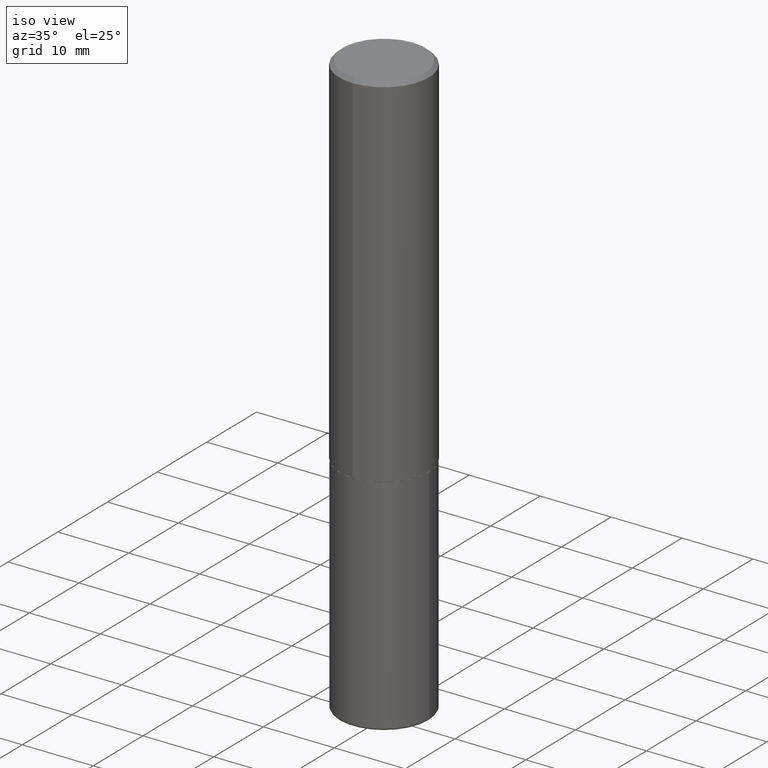
[diagram: clean part render]
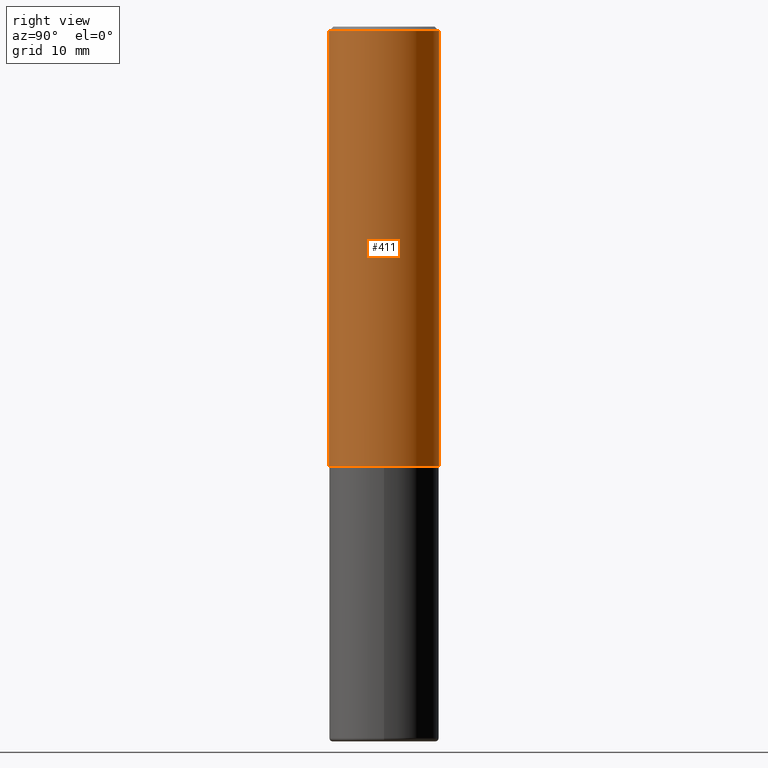
[diagram: tour spotlight — one face highlighted and labeled with its STEP entity id]
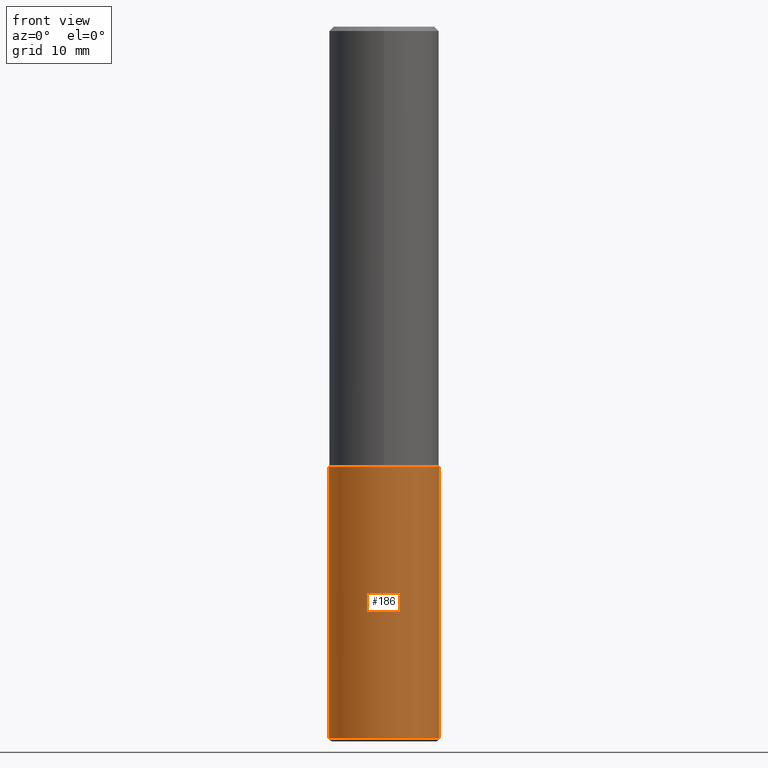
[diagram: tour spotlight — one face highlighted and labeled with its STEP entity id]
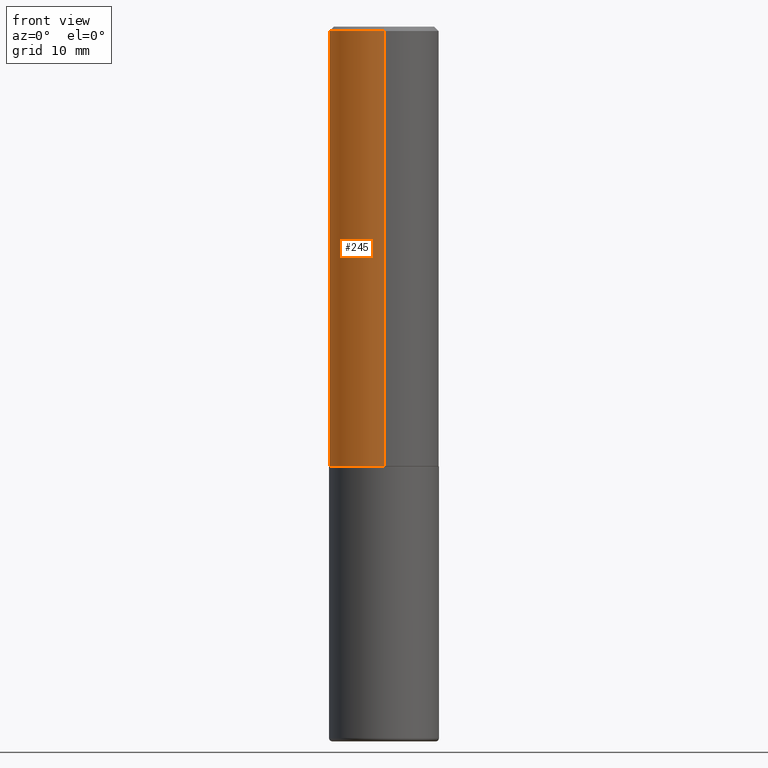
[diagram: tour spotlight — one face highlighted and labeled with its STEP entity id]
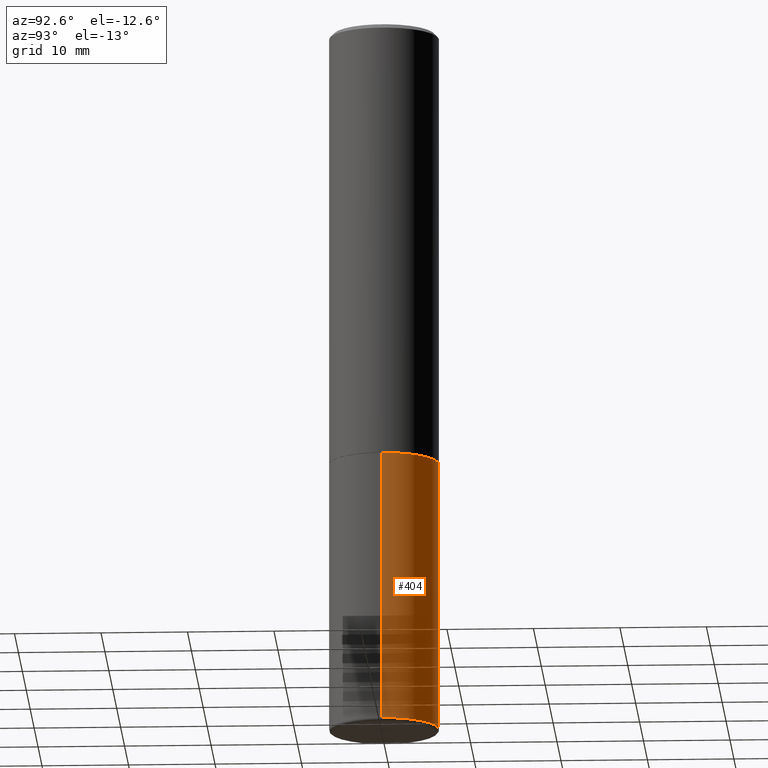
[diagram: tour spotlight — one face highlighted and labeled with its STEP entity id]
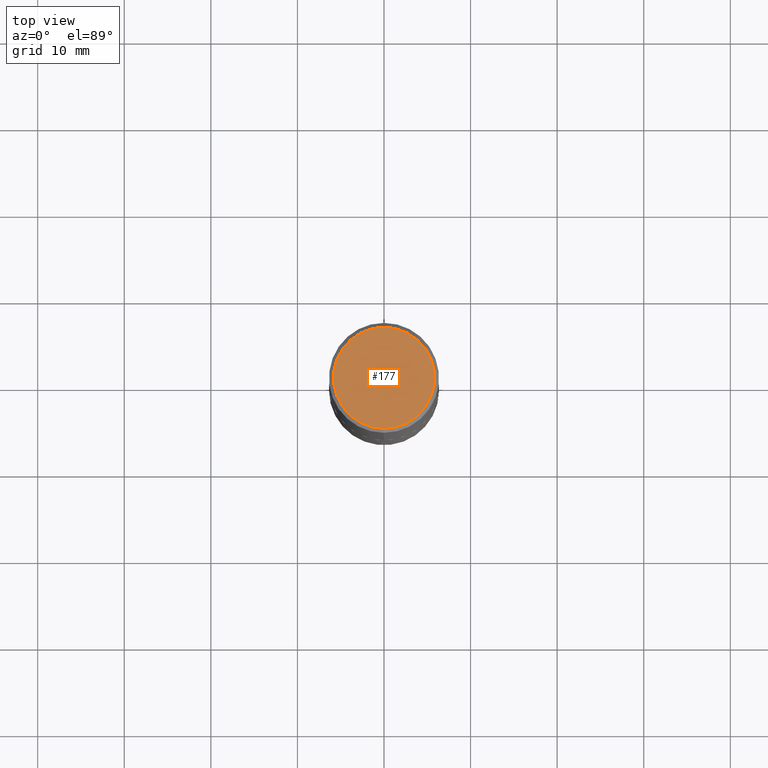
[diagram: tour spotlight — one face highlighted and labeled with its STEP entity id]
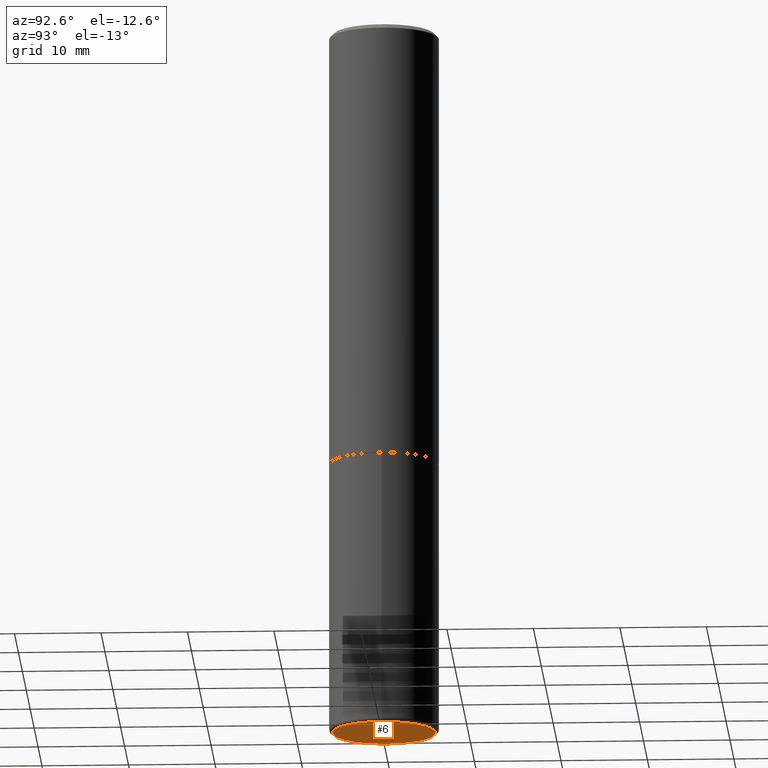
[diagram: tour spotlight — one face highlighted and labeled with its STEP entity id]
A machine part: a face-by-face anatomy tour. The part has 14 B-rep faces; the first image is the clean iso view, then the 6 largest visible faces are spotlighted one at a time (largest first), each with its STEP entity span.

Face 1 — right view, entity #411. In plain terms, the highlighted cylindrical surface (partial cylindrical patch) has radius 6.35 mm, axis along (-0, 0, 1).
Definition (entity closure, byte-faithful):
#18 = CARTESIAN_POINT ( 'NONE',  ( 4.887384162972599193E-29, -6.981057887616797828E-15, -1.998999999999999888 ) ) ;
#19 = VECTOR ( 'NONE', #266, 39.37007874015748143 ) ;
#36 = EDGE_LOOP ( 'NONE', ( #167, #79, #285, #295 ) ) ;
#52 = DIRECTION ( 'NONE',  ( -2.444914538755677752E-29, 3.492275081349073750E-15, 1.000000000000000000 ) ) ;
#53 = CARTESIAN_POINT ( 'NONE',  ( 0.000000000000000000, 0.000000000000000000, 0.000000000000000000 ) ) ;
#62 = DIRECTION ( 'NONE',  ( -2.444914538755678032E-29, 3.492275081349073750E-15, 1.000000000000000000 ) ) ;
#67 = EDGE_CURVE ( 'NONE', #191, #196, #224, .T. ) ;
#76 = CARTESIAN_POINT ( 'NONE',  ( 1.776356839400251254E-15, 0.2500000000000001110, -8.730687703372688319E-16 ) ) ;
#79 = ORIENTED_EDGE ( 'NONE', *, *, #148, .T. ) ;
#83 = CARTESIAN_POINT ( 'NONE',  ( 1.776356839400276103E-15, 0.2499999999999933109, -1.999000000000000776 ) ) ;
#86 = VECTOR ( 'NONE', #62, 39.37007874015748143 ) ;
#148 = EDGE_CURVE ( 'NONE', #318, #316, #355, .T. ) ;
#151 = CARTESIAN_POINT ( 'NONE',  ( 1.745740669421566875E-15, 0.2499999999999999167, -0.02000000000000093023 ) ) ;
#167 = ORIENTED_EDGE ( 'NONE', *, *, #327, .T. ) ;
#191 = VERTEX_POINT ( 'NONE', #205 ) ;
#196 = VERTEX_POINT ( 'NONE', #325 ) ;
#205 = CARTESIAN_POINT ( 'NONE',  ( -1.745740669421519346E-15, -0.2500000000000072164, -1.998999999999999000 ) ) ;
#208 = AXIS2_PLACEMENT_3D ( 'NONE', #53, #368, #399 ) ;
#209 = DIRECTION ( 'NONE',  ( -6.982962677686265922E-15, -1.000000000000000000, 3.500180241882337261E-15 ) ) ;
#210 = FACE_OUTER_BOUND ( 'NONE', #36, .T. ) ;
#215 = CIRCLE ( 'NONE', #251, 0.2500000000000002220 ) ;
#224 = LINE ( 'NONE', #226, #86 ) ;
#226 = CARTESIAN_POINT ( 'NONE',  ( -1.745740669421567467E-15, -0.2500000000000001110, 8.730687703372688319E-16 ) ) ;
#248 = CARTESIAN_POINT ( 'NONE',  ( 4.889829077511369061E-31, -6.984550162698166284E-17, -0.02000000000000005593 ) ) ;
#251 = AXIS2_PLACEMENT_3D ( 'NONE', #18, #52, #279 ) ;
#260 = EDGE_CURVE ( 'NONE', #196, #316, #386, .T. ) ;
#266 = DIRECTION ( 'NONE',  ( -2.444914538755678032E-29, 3.492275081349073750E-15, 1.000000000000000000 ) ) ;
#273 = CYLINDRICAL_SURFACE ( 'NONE', #208, 0.2500000000000001110 ) ;
#279 = DIRECTION ( 'NONE',  ( -6.982962677686266711E-15, -1.000000000000000000, 3.278217592397113101E-15 ) ) ;
#285 = ORIENTED_EDGE ( 'NONE', *, *, #260, .F. ) ;
#295 = ORIENTED_EDGE ( 'NONE', *, *, #67, .F. ) ;
#304 = DIRECTION ( 'NONE',  ( -2.444914538755677752E-29, 3.492275081349073750E-15, 1.000000000000000000 ) ) ;
#316 = VERTEX_POINT ( 'NONE', #151 ) ;
#318 = VERTEX_POINT ( 'NONE', #83 ) ;
#325 = CARTESIAN_POINT ( 'NONE',  ( -1.715124499442882299E-15, -0.2500000000000000555, -0.01999999999999918163 ) ) ;
#327 = EDGE_CURVE ( 'NONE', #191, #318, #215, .T. ) ;
#355 = LINE ( 'NONE', #76, #19 ) ;
#368 = DIRECTION ( 'NONE',  ( -2.444914538755677752E-29, 3.492275081349073750E-15, 1.000000000000000000 ) ) ;
#386 = CIRCLE ( 'NONE', #415, 0.2500000000000000000 ) ;
#399 = DIRECTION ( 'NONE',  ( -6.982962677686266711E-15, -1.000000000000000000, 3.492275081349073750E-15 ) ) ;
#411 = ADVANCED_FACE ( 'NONE', ( #210 ), #273, .T. ) ;
#415 = AXIS2_PLACEMENT_3D ( 'NONE', #248, #304, #209 ) ;

Face 2 — front view, entity #186. In plain terms, the highlighted cylindrical surface (partial cylindrical patch) has radius 6.35 mm, axis along (-0, 0, 1).
Definition (entity closure, byte-faithful):
#5 = CARTESIAN_POINT ( 'NONE',  ( 7.911091588008916622E-29, -1.129494213115757616E-14, -3.234999999999999876 ) ) ;
#10 = DIRECTION ( 'NONE',  ( 1.000000000000000000, -6.982962677686266711E-15, 0.000000000000000000 ) ) ;
#17 = EDGE_LOOP ( 'NONE', ( #228, #312, #143, #389 ) ) ;
#47 = DIRECTION ( 'NONE',  ( -2.445468806185136597E-29, 3.491481338843145583E-15, 1.000000000000000000 ) ) ;
#66 = VECTOR ( 'NONE', #292, 39.37007874015748143 ) ;
#82 = DIRECTION ( 'NONE',  ( -2.445468806185136877E-29, 3.491481338843145188E-15, 1.000000000000000000 ) ) ;
#106 = FACE_OUTER_BOUND ( 'NONE', #17, .T. ) ;
#120 = EDGE_CURVE ( 'NONE', #353, #237, #367, .T. ) ;
#137 = CARTESIAN_POINT ( 'NONE',  ( -0.2500000000000002220, -9.518585291757322543E-15, -3.234999999999999876 ) ) ;
#139 = CYLINDRICAL_SURFACE ( 'NONE', #283, 0.2500000000000000000 ) ;
#143 = ORIENTED_EDGE ( 'NONE', *, *, #206, .T. ) ;
#163 = LINE ( 'NONE', #363, #240 ) ;
#172 = DIRECTION ( 'NONE',  ( 1.000000000000000000, -6.982962677686269077E-15, 0.000000000000000000 ) ) ;
#182 = EDGE_CURVE ( 'NONE', #229, #353, #163, .T. ) ;
#186 = ADVANCED_FACE ( 'NONE', ( #106 ), #139, .T. ) ;
#202 = DIRECTION ( 'NONE',  ( 1.000000000000000000, -6.982962677686266711E-15, 4.876176775795935793E-29 ) ) ;
#204 = DIRECTION ( 'NONE',  ( -2.445468806185136597E-29, 3.491481338843145583E-15, 1.000000000000000000 ) ) ;
#206 = EDGE_CURVE ( 'NONE', #288, #237, #300, .T. ) ;
#228 = ORIENTED_EDGE ( 'NONE', *, *, #182, .F. ) ;
#229 = VERTEX_POINT ( 'NONE', #137 ) ;
#235 = CARTESIAN_POINT ( 'NONE',  ( 0.000000000000000000, 0.000000000000000000, 0.000000000000000000 ) ) ;
#237 = VERTEX_POINT ( 'NONE', #322 ) ;
#240 = VECTOR ( 'NONE', #82, 39.37007874015748143 ) ;
#247 = EDGE_CURVE ( 'NONE', #229, #288, #400, .T. ) ;
#261 = DIRECTION ( 'NONE',  ( -2.445468806185136597E-29, 3.491481338843145583E-15, 1.000000000000000000 ) ) ;
#264 = CARTESIAN_POINT ( 'NONE',  ( 4.890937612370273194E-29, -6.982962677686291165E-15, -2.000000000000000000 ) ) ;
#283 = AXIS2_PLACEMENT_3D ( 'NONE', #235, #204, #202 ) ;
#288 = VERTEX_POINT ( 'NONE', #301 ) ;
#292 = DIRECTION ( 'NONE',  ( -2.445468806185136877E-29, 3.491481338843145188E-15, 1.000000000000000000 ) ) ;
#299 = AXIS2_PLACEMENT_3D ( 'NONE', #5, #261, #172 ) ;
#300 = LINE ( 'NONE', #390, #66 ) ;
#301 = CARTESIAN_POINT ( 'NONE',  ( 0.2500000000000002220, -1.304068280057914284E-14, -3.234999999999999876 ) ) ;
#312 = ORIENTED_EDGE ( 'NONE', *, *, #247, .T. ) ;
#322 = CARTESIAN_POINT ( 'NONE',  ( 0.2500000000000000000, -8.728703347107857054E-15, -2.000000000000000000 ) ) ;
#351 = AXIS2_PLACEMENT_3D ( 'NONE', #264, #47, #10 ) ;
#353 = VERTEX_POINT ( 'NONE', #410 ) ;
#363 = CARTESIAN_POINT ( 'NONE',  ( -0.2500000000000000000, 1.776356839400250465E-15, -1.229733772563726445E-29 ) ) ;
#367 = CIRCLE ( 'NONE', #351, 0.2500000000000000000 ) ;
#389 = ORIENTED_EDGE ( 'NONE', *, *, #120, .F. ) ;
#390 = CARTESIAN_POINT ( 'NONE',  ( 0.2500000000000000000, -1.745740669421566678E-15, 1.219044193948983948E-29 ) ) ;
#400 = CIRCLE ( 'NONE', #299, 0.2500000000000000555 ) ;
#410 = CARTESIAN_POINT ( 'NONE',  ( -0.2500000000000000000, -7.362595565021682805E-15, -2.000000000000000000 ) ) ;

Face 3 — front view, entity #245. In plain terms, the highlighted cylindrical surface (partial cylindrical patch) has radius 6.35 mm, axis along (-0, 0, 1).
Definition (entity closure, byte-faithful):
#16 = CARTESIAN_POINT ( 'NONE',  ( 4.887384162972599193E-29, -6.981057887616797828E-15, -1.998999999999999888 ) ) ;
#19 = VECTOR ( 'NONE', #266, 39.37007874015748143 ) ;
#38 = DIRECTION ( 'NONE',  ( -2.444914538755677752E-29, 3.492275081349073750E-15, 1.000000000000000000 ) ) ;
#44 = ORIENTED_EDGE ( 'NONE', *, *, #307, .T. ) ;
#46 = CARTESIAN_POINT ( 'NONE',  ( 0.000000000000000000, 0.000000000000000000, 0.000000000000000000 ) ) ;
#54 = AXIS2_PLACEMENT_3D ( 'NONE', #16, #242, #332 ) ;
#62 = DIRECTION ( 'NONE',  ( -2.444914538755678032E-29, 3.492275081349073750E-15, 1.000000000000000000 ) ) ;
#67 = EDGE_CURVE ( 'NONE', #191, #196, #224, .T. ) ;
#76 = CARTESIAN_POINT ( 'NONE',  ( 1.776356839400251254E-15, 0.2500000000000001110, -8.730687703372688319E-16 ) ) ;
#83 = CARTESIAN_POINT ( 'NONE',  ( 1.776356839400276103E-15, 0.2499999999999933109, -1.999000000000000776 ) ) ;
#86 = VECTOR ( 'NONE', #62, 39.37007874015748143 ) ;
#105 = AXIS2_PLACEMENT_3D ( 'NONE', #183, #275, #276 ) ;
#109 = FACE_OUTER_BOUND ( 'NONE', #387, .T. ) ;
#128 = CIRCLE ( 'NONE', #105, 0.2500000000000000000 ) ;
#148 = EDGE_CURVE ( 'NONE', #318, #316, #355, .T. ) ;
#151 = CARTESIAN_POINT ( 'NONE',  ( 1.745740669421566875E-15, 0.2499999999999999167, -0.02000000000000093023 ) ) ;
#181 = AXIS2_PLACEMENT_3D ( 'NONE', #46, #38, #270 ) ;
#183 = CARTESIAN_POINT ( 'NONE',  ( 4.889829077511369061E-31, -6.984550162698166284E-17, -0.02000000000000005593 ) ) ;
#191 = VERTEX_POINT ( 'NONE', #205 ) ;
#195 = ORIENTED_EDGE ( 'NONE', *, *, #148, .F. ) ;
#196 = VERTEX_POINT ( 'NONE', #325 ) ;
#198 = CIRCLE ( 'NONE', #54, 0.2500000000000002220 ) ;
#205 = CARTESIAN_POINT ( 'NONE',  ( -1.745740669421519346E-15, -0.2500000000000072164, -1.998999999999999000 ) ) ;
#224 = LINE ( 'NONE', #226, #86 ) ;
#226 = CARTESIAN_POINT ( 'NONE',  ( -1.745740669421567467E-15, -0.2500000000000001110, 8.730687703372688319E-16 ) ) ;
#231 = ORIENTED_EDGE ( 'NONE', *, *, #67, .T. ) ;
#242 = DIRECTION ( 'NONE',  ( -2.444914538755677752E-29, 3.492275081349073750E-15, 1.000000000000000000 ) ) ;
#245 = ADVANCED_FACE ( 'NONE', ( #109 ), #297, .T. ) ;
#254 = ORIENTED_EDGE ( 'NONE', *, *, #333, .F. ) ;
#266 = DIRECTION ( 'NONE',  ( -2.444914538755678032E-29, 3.492275081349073750E-15, 1.000000000000000000 ) ) ;
#270 = DIRECTION ( 'NONE',  ( -6.982962677686266711E-15, -1.000000000000000000, 3.492275081349073750E-15 ) ) ;
#275 = DIRECTION ( 'NONE',  ( -2.444914538755677752E-29, 3.492275081349073750E-15, 1.000000000000000000 ) ) ;
#276 = DIRECTION ( 'NONE',  ( -6.982962677686265922E-15, -1.000000000000000000, 3.500180241882337261E-15 ) ) ;
#297 = CYLINDRICAL_SURFACE ( 'NONE', #181, 0.2500000000000001110 ) ;
#307 = EDGE_CURVE ( 'NONE', #318, #191, #198, .T. ) ;
#316 = VERTEX_POINT ( 'NONE', #151 ) ;
#318 = VERTEX_POINT ( 'NONE', #83 ) ;
#325 = CARTESIAN_POINT ( 'NONE',  ( -1.715124499442882299E-15, -0.2500000000000000555, -0.01999999999999918163 ) ) ;
#332 = DIRECTION ( 'NONE',  ( -6.982962677686266711E-15, -1.000000000000000000, 3.278217592397113101E-15 ) ) ;
#333 = EDGE_CURVE ( 'NONE', #316, #196, #128, .T. ) ;
#355 = LINE ( 'NONE', #76, #19 ) ;
#387 = EDGE_LOOP ( 'NONE', ( #195, #44, #231, #254 ) ) ;

Face 4 — auxiliary view, entity #404. In plain terms, the highlighted cylindrical surface (partial cylindrical patch) has radius 6.35 mm, axis along (-0, 0, 1).
Definition (entity closure, byte-faithful):
#29 = DIRECTION ( 'NONE',  ( -2.445468806185136597E-29, 3.491481338843145583E-15, 1.000000000000000000 ) ) ;
#32 = CIRCLE ( 'NONE', #239, 0.2500000000000000000 ) ;
#37 = DIRECTION ( 'NONE',  ( 1.000000000000000000, -6.982962677686266711E-15, 0.000000000000000000 ) ) ;
#40 = EDGE_CURVE ( 'NONE', #237, #353, #32, .T. ) ;
#48 = EDGE_CURVE ( 'NONE', #288, #229, #150, .T. ) ;
#49 = ORIENTED_EDGE ( 'NONE', *, *, #48, .T. ) ;
#56 = DIRECTION ( 'NONE',  ( -2.445468806185136597E-29, 3.491481338843145583E-15, 1.000000000000000000 ) ) ;
#63 = ORIENTED_EDGE ( 'NONE', *, *, #206, .F. ) ;
#66 = VECTOR ( 'NONE', #292, 39.37007874015748143 ) ;
#82 = DIRECTION ( 'NONE',  ( -2.445468806185136877E-29, 3.491481338843145188E-15, 1.000000000000000000 ) ) ;
#118 = CARTESIAN_POINT ( 'NONE',  ( 0.000000000000000000, 0.000000000000000000, 0.000000000000000000 ) ) ;
#124 = DIRECTION ( 'NONE',  ( 1.000000000000000000, -6.982962677686269077E-15, 0.000000000000000000 ) ) ;
#137 = CARTESIAN_POINT ( 'NONE',  ( -0.2500000000000002220, -9.518585291757322543E-15, -3.234999999999999876 ) ) ;
#140 = ORIENTED_EDGE ( 'NONE', *, *, #182, .T. ) ;
#144 = AXIS2_PLACEMENT_3D ( 'NONE', #118, #56, #336 ) ;
#146 = CYLINDRICAL_SURFACE ( 'NONE', #144, 0.2500000000000000000 ) ;
#150 = CIRCLE ( 'NONE', #164, 0.2500000000000000555 ) ;
#157 = DIRECTION ( 'NONE',  ( -2.445468806185136597E-29, 3.491481338843145583E-15, 1.000000000000000000 ) ) ;
#163 = LINE ( 'NONE', #363, #240 ) ;
#164 = AXIS2_PLACEMENT_3D ( 'NONE', #413, #157, #124 ) ;
#180 = CARTESIAN_POINT ( 'NONE',  ( 4.890937612370273194E-29, -6.982962677686291165E-15, -2.000000000000000000 ) ) ;
#182 = EDGE_CURVE ( 'NONE', #229, #353, #163, .T. ) ;
#206 = EDGE_CURVE ( 'NONE', #288, #237, #300, .T. ) ;
#229 = VERTEX_POINT ( 'NONE', #137 ) ;
#237 = VERTEX_POINT ( 'NONE', #322 ) ;
#239 = AXIS2_PLACEMENT_3D ( 'NONE', #180, #29, #37 ) ;
#240 = VECTOR ( 'NONE', #82, 39.37007874015748143 ) ;
#257 = EDGE_LOOP ( 'NONE', ( #49, #140, #262, #63 ) ) ;
#262 = ORIENTED_EDGE ( 'NONE', *, *, #40, .F. ) ;
#288 = VERTEX_POINT ( 'NONE', #301 ) ;
#292 = DIRECTION ( 'NONE',  ( -2.445468806185136877E-29, 3.491481338843145188E-15, 1.000000000000000000 ) ) ;
#300 = LINE ( 'NONE', #390, #66 ) ;
#301 = CARTESIAN_POINT ( 'NONE',  ( 0.2500000000000002220, -1.304068280057914284E-14, -3.234999999999999876 ) ) ;
#322 = CARTESIAN_POINT ( 'NONE',  ( 0.2500000000000000000, -8.728703347107857054E-15, -2.000000000000000000 ) ) ;
#336 = DIRECTION ( 'NONE',  ( 1.000000000000000000, -6.982962677686266711E-15, 4.876176775795935793E-29 ) ) ;
#353 = VERTEX_POINT ( 'NONE', #410 ) ;
#363 = CARTESIAN_POINT ( 'NONE',  ( -0.2500000000000000000, 1.776356839400250465E-15, -1.229733772563726445E-29 ) ) ;
#366 = FACE_OUTER_BOUND ( 'NONE', #257, .T. ) ;
#390 = CARTESIAN_POINT ( 'NONE',  ( 0.2500000000000000000, -1.745740669421566678E-15, 1.219044193948983948E-29 ) ) ;
#404 = ADVANCED_FACE ( 'NONE', ( #366 ), #146, .T. ) ;
#410 = CARTESIAN_POINT ( 'NONE',  ( -0.2500000000000000000, -7.362595565021682805E-15, -2.000000000000000000 ) ) ;
#413 = CARTESIAN_POINT ( 'NONE',  ( 7.911091588008916622E-29, -1.129494213115757616E-14, -3.234999999999999876 ) ) ;

Face 5 — top view, entity #177. In plain terms, the highlighted planar face has unit normal (0, -0, -1).
Definition (entity closure, byte-faithful):
#35 = DIRECTION ( 'NONE',  ( -2.444914538755677752E-29, 3.492275081349073750E-15, 1.000000000000000000 ) ) ;
#68 = EDGE_LOOP ( 'NONE', ( #269, #359 ) ) ;
#74 = DIRECTION ( 'NONE',  ( 2.444914538755677191E-29, -3.492275081349073750E-15, -1.000000000000000000 ) ) ;
#78 = DIRECTION ( 'NONE',  ( 6.982962677686265922E-15, 1.000000000000000000, -3.492275081349073750E-15 ) ) ;
#102 = VERTEX_POINT ( 'NONE', #127 ) ;
#108 = EDGE_CURVE ( 'NONE', #102, #272, #135, .T. ) ;
#114 = DIRECTION ( 'NONE',  ( -6.982962677686265922E-15, -1.000000000000000000, 3.492275081349073750E-15 ) ) ;
#116 = CARTESIAN_POINT ( 'NONE',  ( -1.646519519465166770E-15, -0.2299999999999998990, 9.015816167589595013E-16 ) ) ;
#127 = CARTESIAN_POINT ( 'NONE',  ( 1.675911042644703774E-15, 0.2299999999999998990, -7.048649206616136781E-16 ) ) ;
#135 = CIRCLE ( 'NONE', #384, 0.2299999999999998990 ) ;
#160 = DIRECTION ( 'NONE',  ( -6.982962677686265922E-15, -1.000000000000000000, 3.492275081349073750E-15 ) ) ;
#176 = FACE_OUTER_BOUND ( 'NONE', #68, .T. ) ;
#177 = ADVANCED_FACE ( 'NONE', ( #176 ), #230, .F. ) ;
#193 = CARTESIAN_POINT ( 'NONE',  ( -2.404777551521915738E-45, 3.434944079330397096E-31, 9.835834804867292393E-17 ) ) ;
#214 = AXIS2_PLACEMENT_3D ( 'NONE', #238, #74, #78 ) ;
#217 = DIRECTION ( 'NONE',  ( -2.444914538755677752E-29, 3.492275081349073750E-15, 1.000000000000000000 ) ) ;
#230 = PLANE ( 'NONE',  #214 ) ;
#238 = CARTESIAN_POINT ( 'NONE',  ( 1.606081415867840476E-15, 0.2299999999999998990, -7.540440946859502079E-16 ) ) ;
#269 = ORIENTED_EDGE ( 'NONE', *, *, #108, .T. ) ;
#272 = VERTEX_POINT ( 'NONE', #116 ) ;
#277 = EDGE_CURVE ( 'NONE', #272, #102, #303, .T. ) ;
#303 = CIRCLE ( 'NONE', #342, 0.2299999999999998990 ) ;
#342 = AXIS2_PLACEMENT_3D ( 'NONE', #370, #217, #114 ) ;
#359 = ORIENTED_EDGE ( 'NONE', *, *, #277, .T. ) ;
#370 = CARTESIAN_POINT ( 'NONE',  ( -2.404777551521915738E-45, 3.434944079330397096E-31, 9.835834804867292393E-17 ) ) ;
#384 = AXIS2_PLACEMENT_3D ( 'NONE', #193, #35, #160 ) ;

Face 6 — auxiliary view, entity #6. In plain terms, the highlighted planar face has unit normal (0, -0, -1).
Definition (entity closure, byte-faithful):
#6 = ADVANCED_FACE ( 'NONE', ( #174 ), #24, .T. ) ;
#24 = PLANE ( 'NONE',  #80 ) ;
#25 = DIRECTION ( 'NONE',  ( -2.445468806185136597E-29, 3.491481338843145583E-15, 1.000000000000000000 ) ) ;
#65 = CARTESIAN_POINT ( 'NONE',  ( 0.2350000000000000144, -1.298831058049649931E-14, -3.250000000000000444 ) ) ;
#73 = AXIS2_PLACEMENT_3D ( 'NONE', #179, #25, #121 ) ;
#80 = AXIS2_PLACEMENT_3D ( 'NONE', #218, #211, #335 ) ;
#103 = DIRECTION ( 'NONE',  ( 1.000000000000000000, -6.982962677686270655E-15, 0.000000000000000000 ) ) ;
#107 = VERTEX_POINT ( 'NONE', #65 ) ;
#121 = DIRECTION ( 'NONE',  ( 1.000000000000000000, -6.982962677686270655E-15, 0.000000000000000000 ) ) ;
#123 = EDGE_CURVE ( 'NONE', #130, #107, #308, .T. ) ;
#130 = VERTEX_POINT ( 'NONE', #134 ) ;
#134 = CARTESIAN_POINT ( 'NONE',  ( -0.2350000000000000144, -9.598062106980653841E-15, -3.250000000000000444 ) ) ;
#169 = CARTESIAN_POINT ( 'NONE',  ( 7.947773620101696182E-29, -1.134731435124022600E-14, -3.250000000000000444 ) ) ;
#174 = FACE_OUTER_BOUND ( 'NONE', #380, .T. ) ;
#179 = CARTESIAN_POINT ( 'NONE',  ( 7.947773620101696182E-29, -1.134731435124022600E-14, -3.250000000000000444 ) ) ;
#185 = AXIS2_PLACEMENT_3D ( 'NONE', #169, #396, #103 ) ;
#211 = DIRECTION ( 'NONE',  ( 2.438088387897960049E-29, -3.491481338843145188E-15, -1.000000000000000000 ) ) ;
#218 = CARTESIAN_POINT ( 'NONE',  ( 2.671324608371788067E-29, -1.890348965286478772E-14, -3.250000000000000444 ) ) ;
#233 = CIRCLE ( 'NONE', #73, 0.2350000000000000144 ) ;
#259 = ORIENTED_EDGE ( 'NONE', *, *, #291, .F. ) ;
#291 = EDGE_CURVE ( 'NONE', #107, #130, #233, .T. ) ;
#308 = CIRCLE ( 'NONE', #185, 0.2350000000000000144 ) ;
#335 = DIRECTION ( 'NONE',  ( -1.000000000000000000, 6.982962677686265922E-15, -4.876176775795935793E-29 ) ) ;
#380 = EDGE_LOOP ( 'NONE', ( #259, #418 ) ) ;
#396 = DIRECTION ( 'NONE',  ( -2.445468806185136597E-29, 3.491481338843145583E-15, 1.000000000000000000 ) ) ;
#418 = ORIENTED_EDGE ( 'NONE', *, *, #123, .F. ) ;